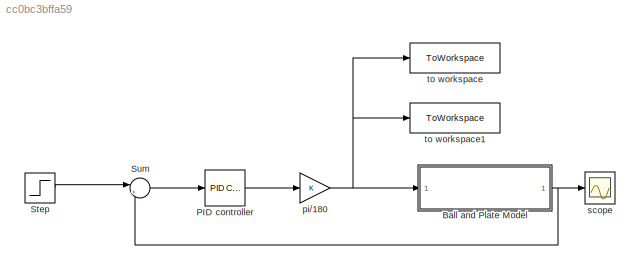
MODEL slx_cc0bc3bffa59
KIND model
CONFIG AbsTol = auto
CONFIG EnableMultiTasking = off
CONFIG FixedStep = auto
CONFIG MaxStep = auto
CONFIG MinStep = auto
CONFIG RelTol = 1e-3
CONFIG SampleTimeConstraint = Unconstrained
CONFIG Solver = VariableStepAuto
CONFIG SolverName = VariableStepAuto
CONFIG StartTime = 0.0
CONFIG StopTime = 10.0
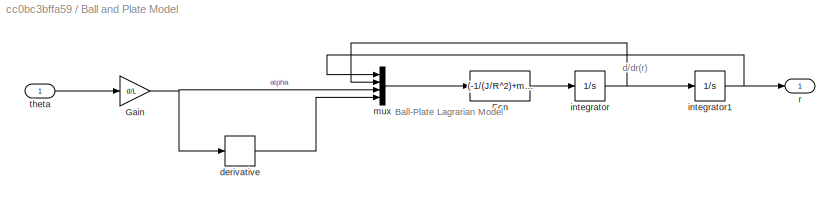
BLOCK [SubSystem] Ball and Plate Model
  Ports = [1, 1]
  RequestExecContextInheritance = off
BLOCK [Fcn] Ball and Plate Model/Fcn
  Expr = (-1/(J/R^2)+m))*(m*g*sin(u[3])-m*u[1]*(u[4])^2)
BLOCK [Gain] Ball and Plate Model/Gain
  Gain = d/L
BLOCK [Derivative] Ball and Plate Model/derivative
BLOCK [Integrator] Ball and Plate Model/integrator
  Ports = [1, 1]
BLOCK [Integrator] Ball and Plate Model/integrator1
  Ports = [1, 1]
BLOCK [Mux] Ball and Plate Model/mux
  DisplayOption = bar
  Ports = [4, 1]
BLOCK [Outport] Ball and Plate Model/r
BLOCK [Inport] Ball and Plate Model/theta
BLOCK [Reference] PID controller  REF=simulink/Continuous/PID Controller
  Ports = [1, 1]
  SourceBlock = simulink/Continuous/PID Controller
  SourceProductBaseCode = SL
  SourceType = PID 1dof
BLOCK [Step] Step
  SampleTime = 0
BLOCK [Sum] Sum
  Inputs = |+-
  Ports = [2, 1]
BLOCK [Gain] pi//180
BLOCK [Scope] scope
  Floating = off
  NumInputPorts = 1
  Ports = [1]
  ScopeSpecificationString = Simulink.scopes.TimeScopeBlockCfg('CurrentConfiguration', extmgr.ConfigurationSet(extmgr.Configuration('Core','General UI',true),extmgr.Configuration('Core','Source UI',true),extmgr.Configuration('Sources','WiredSimulink',true),extmgr.Configuration('Visuals','Time Domain',true),extmgr.Configuration('Tools','Plot Navigation',true),extmgr.Configuration('Tools','Measurements',true)),'Version','2020a'...<+1ch>
BLOCK [ToWorkspace] to workspace
  FixptAsFi = on
  MaxDataPoints = inf
  Ports = [1]
  SampleTime = 1
  VariableName = theta
BLOCK [ToWorkspace] to workspace1
  FixptAsFi = on
  MaxDataPoints = inf
  Ports = [1]
  SampleTime = -1
  SaveFormat = Timeseries
  VariableName = theta1
ANNOTATION Ball and Plate Model: Ball-Plate Lagrarian Model
ANNOTATION Ball and Plate Model: d/dr(r)
LINE Ball and Plate Model/Fcn:1 -> Ball and Plate Model/integrator:1
NET Ball and Plate Model/Gain:1 -> Ball and Plate Model/derivative:1, Ball and Plate Model/mux:3
LINE Ball and Plate Model/derivative:1 -> Ball and Plate Model/mux:4
NET Ball and Plate Model/integrator1:1 -> Ball and Plate Model/mux:1, Ball and Plate Model/r:1
NET Ball and Plate Model/integrator:1 -> Ball and Plate Model/integrator1:1, Ball and Plate Model/mux:2
LINE Ball and Plate Model/mux:1 -> Ball and Plate Model/Fcn:1
LINE Ball and Plate Model/theta:1 -> Ball and Plate Model/Gain:1
NET Ball and Plate Model:1 -> Sum:2, scope:1
LINE PID controller:1 -> pi//180:1
LINE Step:1 -> Sum:1
LINE Sum:1 -> PID controller:1
NET pi//180:1 -> Ball and Plate Model:1, to workspace1:1, to workspace:1
note: NET lines group one-source signal fan-out (src -> all destinations, sorted); 1:1 wires keep LINE
